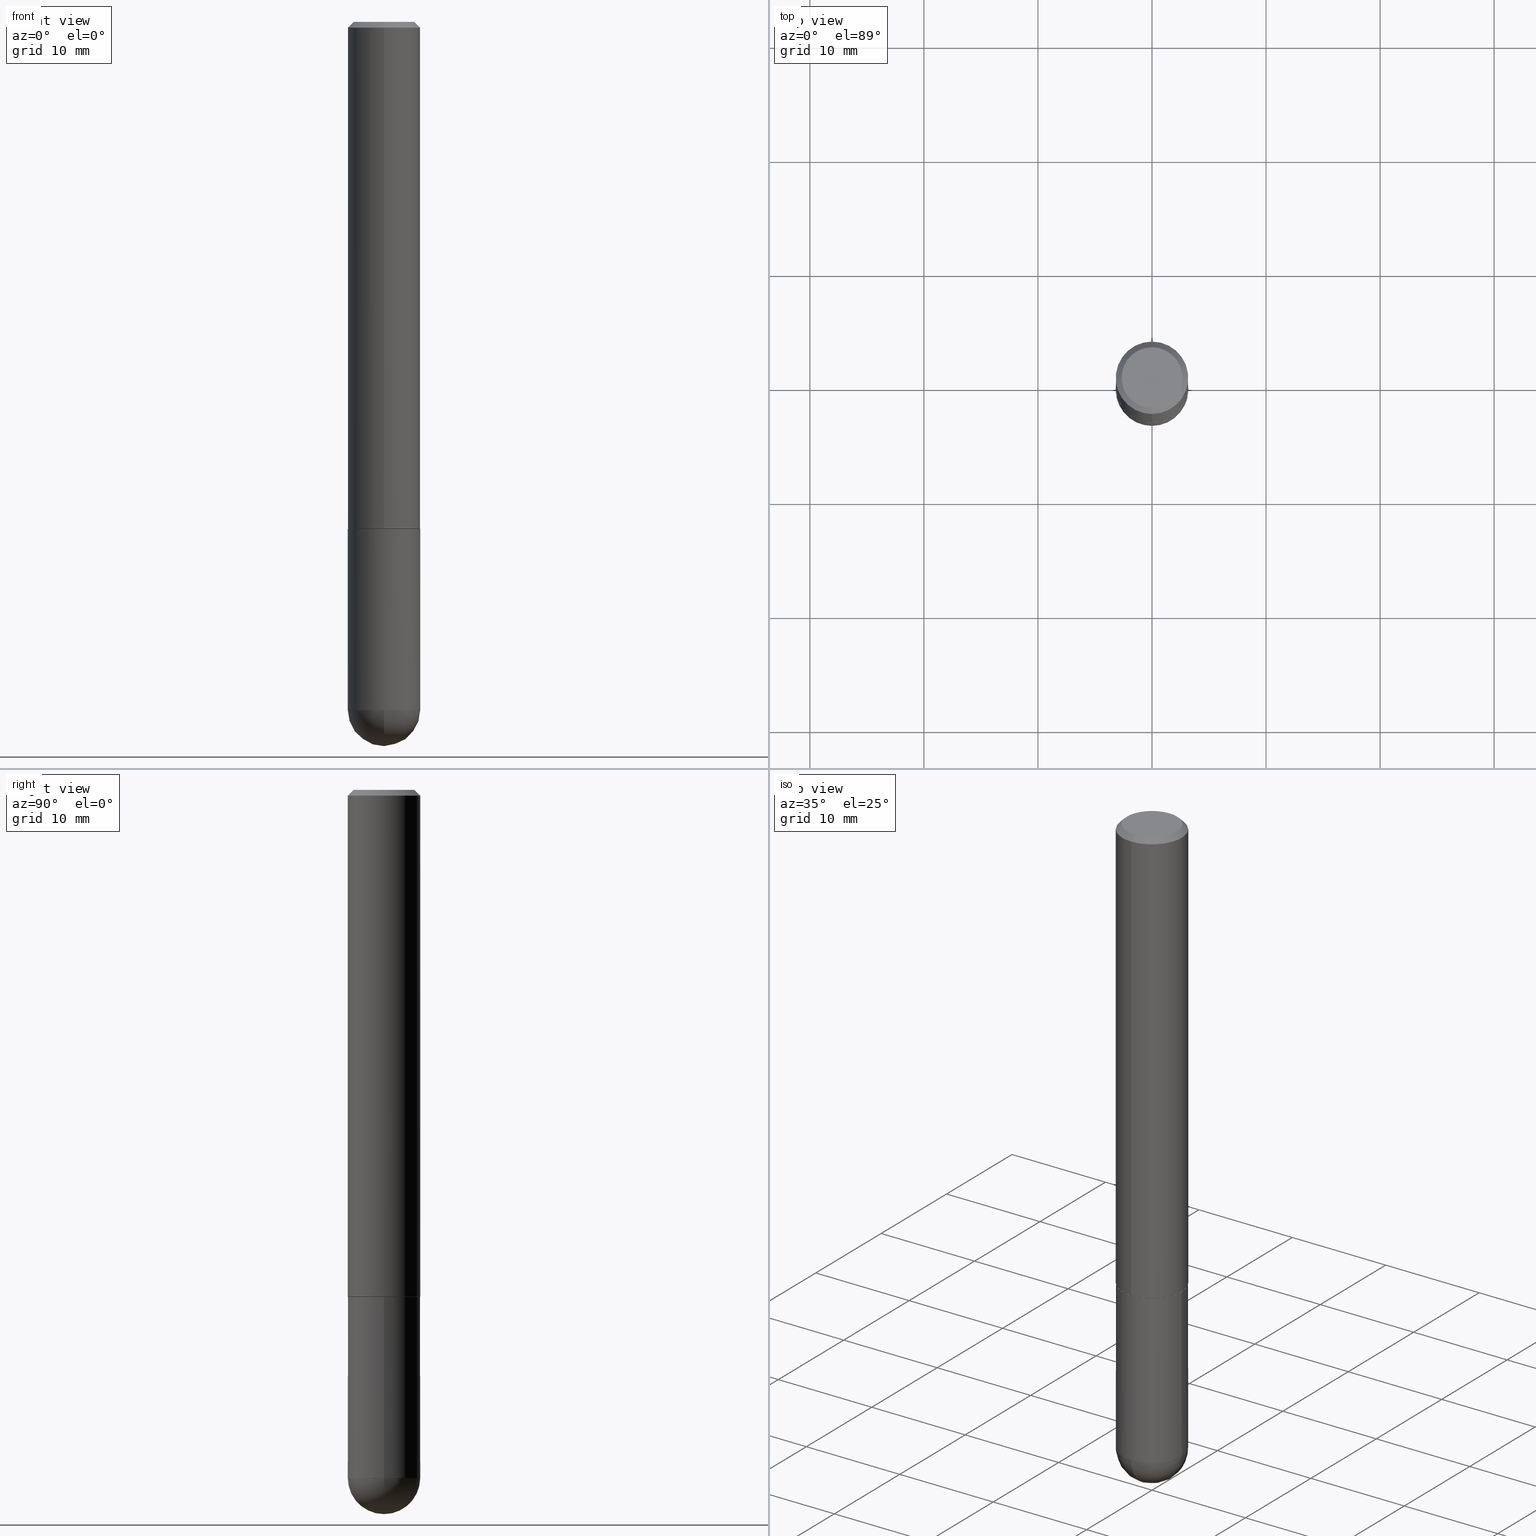
[diagram: canonical four-view strip — front | top / right | iso, engineering-drawing reading convention]
A machine part, canonical four-view strip (front | top / right | iso — engineering-drawing reading convention). The complete STEP part file that produces these views, byte-faithful:
ISO-10303-21;
HEADER;
FILE_DESCRIPTION (( 'STEP AP203' ),
    '1' );
FILE_NAME ('30132.STEP',
    '2024-02-21T16:35:25',
    ( '' ),
    ( '' ),
    'SwSTEP 2.0',
    'SolidWorks 2023',
    '' );
FILE_SCHEMA (( 'CONFIG_CONTROL_DESIGN' ));
ENDSEC;

DATA;
#1 = ADVANCED_FACE ( 'NONE', ( #272 ), #264, .F. ) ;
#2 = DIRECTION ( 'NONE',  ( -6.982962677686266711E-15, -1.000000000000000000, 3.491141472859906642E-15 ) ) ;
#3 = DIRECTION ( 'NONE',  ( -6.982962677686265922E-15, -1.000000000000000000, 4.406206441393973340E-15 ) ) ;
#4 = LINE ( 'NONE', #293, #371 ) ;
#5 = APPROVAL_DATE_TIME ( #65, #129 ) ;
#6 = CIRCLE ( 'NONE', #401, 0.1239999999999999991 ) ;
#7 = EDGE_CURVE ( 'NONE', #91, #100, #302, .T. ) ;
#8 = CALENDAR_DATE ( 2024, 21, 2 ) ;
#9 = CARTESIAN_POINT ( 'NONE',  ( 4.277540027199021844E-29, -6.106006436031975850E-15, -1.749000000000000110 ) ) ;
#10 = LENGTH_MEASURE_WITH_UNIT ( LENGTH_MEASURE( 0.02539999999999999897 ), #208 );
#11 = DIRECTION ( 'NONE',  ( 2.438088387897960049E-29, -3.491481338843145188E-15, -1.000000000000000000 ) ) ;
#12 = ORIENTED_EDGE ( 'NONE', *, *, #108, .F. ) ;
#13 = CARTESIAN_POINT ( 'NONE',  ( 4.891412266665553962E-31, -6.982282945719821124E-17, -0.02000000000000002470 ) ) ;
#14 = CIRCLE ( 'NONE', #345, 0.1250000000000000000 ) ;
#15 = APPROVAL_PERSON_ORGANIZATION ( #34, #224, #96 ) ;
#16 = LINE ( 'NONE', #238, #147 ) ;
#17 = ORIENTED_EDGE ( 'NONE', *, *, #188, .T. ) ;
#18 = EDGE_CURVE ( 'NONE', #252, #134, #112, .T. ) ;
#19 = DIRECTION ( 'NONE',  ( -6.982962677686266711E-15, -1.000000000000000000, 3.491141472859906642E-15 ) ) ;
#20 = ORIENTED_EDGE ( 'NONE', *, *, #206, .T. ) ;
#21 = CARTESIAN_POINT ( 'NONE',  ( 0.000000000000000000, 0.000000000000000000, 0.000000000000000000 ) ) ;
#22 = PERSON_AND_ORGANIZATION ( #317, #389 ) ;
#23 = ORIENTED_EDGE ( 'NONE', *, *, #376, .T. ) ;
#24 = PERSON_AND_ORGANIZATION_ROLE ( 'design_supplier' ) ;
#25 = DESIGN_CONTEXT ( 'detailed design', #186, 'design' ) ;
#26 = VERTEX_POINT ( 'NONE', #42 ) ;
#27 = EDGE_CURVE ( 'NONE', #355, #26, #373, .T. ) ;
#28 = CONICAL_SURFACE ( 'NONE', #300, 0.1250000000000000000, 0.7853981633974473908 ) ;
#29 = CC_DESIGN_PERSON_AND_ORGANIZATION_ASSIGNMENT ( #209, #181, ( #153 ) ) ;
#30 = DIRECTION ( 'NONE',  ( -2.445706133332774021E-29, 3.491141472859906642E-15, 1.000000000000000000 ) ) ;
#31 = DIRECTION ( 'NONE',  ( -2.445468806185136597E-29, 3.491481338843145583E-15, 1.000000000000000000 ) ) ;
#32 = DIRECTION ( 'NONE',  ( -2.445706133332773740E-29, 3.491141472859906642E-15, 1.000000000000000000 ) ) ;
#33 = CARTESIAN_POINT ( 'NONE',  ( 5.807988414689700538E-29, -8.292268179752471696E-15, -2.375000000000000000 ) ) ;
#34 = PERSON_AND_ORGANIZATION ( #317, #389 ) ;
#35 = CARTESIAN_POINT ( 'NONE',  ( -0.1250000000000000000, -6.313001841663864134E-15, -2.375000000000000000 ) ) ;
#36 = AXIS2_PLACEMENT_3D ( 'NONE', #205, #38, #174 ) ;
#37 = EDGE_CURVE ( 'NONE', #88, #26, #14, .T. ) ;
#38 = DIRECTION ( 'NONE',  ( 1.000000000000000000, -6.982962677686265922E-15, 4.883557194083112340E-29 ) ) ;
#39 = EDGE_CURVE ( 'NONE', #26, #88, #246, .T. ) ;
#40 = ORIENTED_EDGE ( 'NONE', *, *, #287, .T. ) ;
#41 = AXIS2_PLACEMENT_3D ( 'NONE', #324, #330, #19 ) ;
#42 = CARTESIAN_POINT ( 'NONE',  ( -8.575622497214408537E-16, -0.1250000000000000555, -0.01999999999999959102 ) ) ;
#43 = CC_DESIGN_APPROVAL ( #224, ( #260 ) ) ;
#44 = COORDINATED_UNIVERSAL_TIME_OFFSET ( 5, 0, .BEHIND. ) ;
#45 = DIRECTION ( 'NONE',  ( 1.000000000000000000, 0.000000000000000000, 0.000000000000000000 ) ) ;
#46 = CARTESIAN_POINT ( 'NONE',  ( 8.030407079339207309E-16, 0.1049999999999999684, -3.281889281676264539E-16 ) ) ;
#47 = ORIENTED_EDGE ( 'NONE', *, *, #27, .T. ) ;
#48 = FACE_OUTER_BOUND ( 'NONE', #106, .T. ) ;
#49 = DIRECTION ( 'NONE',  ( -4.851104656540959542E-15, -0.7071067811865493491, -0.7071067811865457964 ) ) ;
#50 = SHAPE_DEFINITION_REPRESENTATION ( #377, #326 ) ;
#51 = ORIENTED_EDGE ( 'NONE', *, *, #399, .F. ) ;
#52 = DIRECTION ( 'NONE',  ( -2.445706133332774021E-29, 3.491141472859906642E-15, 1.000000000000000000 ) ) ;
#53 = EDGE_LOOP ( 'NONE', ( #267, #263 ) ) ;
#54 = PERSON_AND_ORGANIZATION_ROLE ( 'creator' ) ;
#55 = AXIS2_PLACEMENT_3D ( 'NONE', #322, #256, #95 ) ;
#56 = ORIENTED_EDGE ( 'NONE', *, *, #108, .T. ) ;
#57 = SECURITY_CLASSIFICATION_LEVEL ( 'unclassified' ) ;
#58 = AXIS2_PLACEMENT_3D ( 'NONE', #84, #299, #400 ) ;
#59 = CC_DESIGN_SECURITY_CLASSIFICATION ( #153, ( #260 ) ) ;
#60 = ORIENTED_EDGE ( 'NONE', *, *, #37, .F. ) ;
#61 = AXIS2_PLACEMENT_3D ( 'NONE', #148, #334, #271 ) ;
#62 = DIRECTION ( 'NONE',  ( -2.445706133332773460E-29, 3.491141472859906642E-15, 1.000000000000000000 ) ) ;
#63 = CARTESIAN_POINT ( 'NONE',  ( -8.728703347107841277E-16, -0.1250000000000001110, 4.363926841074887247E-16 ) ) ;
#64 = DIRECTION ( 'NONE',  ( 6.982962677686265922E-15, 1.000000000000000000, -3.483106191921935554E-15 ) ) ;
#65 = DATE_AND_TIME ( #198, #391 ) ;
#66 = CARTESIAN_POINT ( 'NONE',  ( 0.1250000000000000000, -6.982962677686288010E-15, -1.750000000000000222 ) ) ;
#67 = FACE_OUTER_BOUND ( 'NONE', #184, .T. ) ;
#68 = AXIS2_PLACEMENT_3D ( 'NONE', #179, #397, #142 ) ;
#69 = CARTESIAN_POINT ( 'NONE',  ( -8.881784197000694204E-16, -0.1250000000000086320, -2.374999999999999556 ) ) ;
#70 = AXIS2_PLACEMENT_3D ( 'NONE', #336, #104, #216 ) ;
#71 = VERTEX_POINT ( 'NONE', #398 ) ;
#72 = MANIFOLD_SOLID_BREP ( 'Body-Move/Copy2[1]', #168 ) ;
#73 = PERSON_AND_ORGANIZATION ( #317, #389 ) ;
#74 = VERTEX_POINT ( 'NONE', #234 ) ;
#75 = CIRCLE ( 'NONE', #152, 0.1250000000000002498 ) ;
#76 = PLANE ( 'NONE',  #282 ) ;
#77 = ORIENTED_EDGE ( 'NONE', *, *, #351, .F. ) ;
#78 = DIRECTION ( 'NONE',  ( -2.445468806185136597E-29, 3.491481338843145583E-15, 1.000000000000000000 ) ) ;
#79 = CIRCLE ( 'NONE', #311, 0.1250000000000001943 ) ;
#80 = CALENDAR_DATE ( 2024, 21, 2 ) ;
#81 = DIRECTION ( 'NONE',  ( -1.000000000000000000, 7.105427357601001070E-15, -4.926315508542082329E-29 ) ) ;
#82 = EDGE_CURVE ( 'NONE', #74, #252, #175, .T. ) ;
#83 = APPROVAL_STATUS ( 'not_yet_approved' ) ;
#84 = CARTESIAN_POINT ( 'NONE',  ( 5.807988414689700538E-29, -8.292268179752471696E-15, -2.375000000000000000 ) ) ;
#85 = FACE_OUTER_BOUND ( 'NONE', #245, .T. ) ;
#86 = VERTEX_POINT ( 'NONE', #270 ) ;
#87 = EDGE_CURVE ( 'NONE', #91, #252, #276, .T. ) ;
#88 = VERTEX_POINT ( 'NONE', #117 ) ;
#89 = AXIS2_PLACEMENT_3D ( 'NONE', #223, #195, #312 ) ;
#90 = LINE ( 'NONE', #161, #133 ) ;
#91 = VERTEX_POINT ( 'NONE', #343 ) ;
#92 = ADVANCED_FACE ( 'NONE', ( #85 ), #352, .T. ) ;
#93 = CYLINDRICAL_SURFACE ( 'NONE', #89, 0.1250000000000000000 ) ;
#94 = FACE_OUTER_BOUND ( 'NONE', #378, .T. ) ;
#95 = DIRECTION ( 'NONE',  ( -6.982962677686265133E-15, -1.000000000000000000, 4.370956789862812472E-15 ) ) ;
#96 = APPROVAL_ROLE ( '' ) ;
#97 = CIRCLE ( 'NONE', #241, 0.1239999999999999991 ) ;
#98 = AXIS2_PLACEMENT_3D ( 'NONE', #295, #357, #359 ) ;
#99 = AXIS2_PLACEMENT_3D ( 'NONE', #33, #191, #392 ) ;
#100 = VERTEX_POINT ( 'NONE', #66 ) ;
#101 = FACE_OUTER_BOUND ( 'NONE', #200, .T. ) ;
#102 = CC_DESIGN_PERSON_AND_ORGANIZATION_ASSIGNMENT ( #340, #24, ( #260 ) ) ;
#103 = ORIENTED_EDGE ( 'NONE', *, *, #266, .F. ) ;
#104 = DIRECTION ( 'NONE',  ( -2.445468806185136597E-29, 3.491481338843145583E-15, 1.000000000000000000 ) ) ;
#105 = CARTESIAN_POINT ( 'NONE',  ( 5.807988414689700538E-29, -8.292268179752471696E-15, -2.375000000000000000 ) ) ;
#106 = EDGE_LOOP ( 'NONE', ( #350, #115, #20, #342, #103 ) ) ;
#107 = DIRECTION ( 'NONE',  ( 1.000000000000000000, -6.982962677686270655E-15, 0.000000000000000000 ) ) ;
#108 = EDGE_CURVE ( 'NONE', #285, #355, #408, .T. ) ;
#109 = SPHERICAL_SURFACE ( 'NONE', #68, 0.1250000000000001943 ) ;
#110 = CIRCLE ( 'NONE', #381, 0.1250000000000000000 ) ;
#111 = CARTESIAN_POINT ( 'NONE',  ( 0.1250000000000000000, -8.728703347107833388E-16, 6.095220969744919741E-30 ) ) ;
#112 = CIRCLE ( 'NONE', #61, 0.1250000000000000000 ) ;
#113 = FACE_OUTER_BOUND ( 'NONE', #236, .T. ) ;
#114 = UNCERTAINTY_MEASURE_WITH_UNIT (LENGTH_MEASURE( 1.000000000000000082E-05 ), #136, 'distance_accuracy_value', 'NONE');
#115 = ORIENTED_EDGE ( 'NONE', *, *, #354, .T. ) ;
#116 = ADVANCED_FACE ( 'NONE', ( #166 ), #255, .T. ) ;
#117 = CARTESIAN_POINT ( 'NONE',  ( 8.728703347107837333E-16, 0.1249999999999999306, -0.02000000000000046185 ) ) ;
#118 = VERTEX_POINT ( 'NONE', #199 ) ;
#119 = VECTOR ( 'NONE', #356, 39.37007874015748143 ) ;
#120 = ORIENTED_EDGE ( 'NONE', *, *, #281, .F. ) ;
#121 = LINE ( 'NONE', #250, #247 ) ;
#122 = FACE_OUTER_BOUND ( 'NONE', #171, .T. ) ;
#123 = ORIENTED_EDGE ( 'NONE', *, *, #155, .F. ) ;
#124 = ORIENTED_EDGE ( 'NONE', *, *, #314, .T. ) ;
#125 = PLANE ( 'NONE',  #227 ) ;
#126 = CARTESIAN_POINT ( 'NONE',  ( 0.000000000000000000, 0.000000000000000000, 0.000000000000000000 ) ) ;
#127 = EDGE_CURVE ( 'NONE', #144, #71, #280, .T. ) ;
#128 = DIRECTION ( 'NONE',  ( 5.024295867788490741E-15, 0.7071067811866103003, 0.7071067811864847341 ) ) ;
#129 = APPROVAL ( #318, 'UNSPECIFIED' ) ;
#130 = CARTESIAN_POINT ( 'NONE',  ( -7.889572697437258181E-16, -0.1049999999999999684, 4.049507811329536610E-16 ) ) ;
#131 = DATE_AND_TIME ( #8, #229 ) ;
#132 = APPROVAL_PERSON_ORGANIZATION ( #22, #341, #185 ) ;
#133 = VECTOR ( 'NONE', #32, 39.37007874015748143 ) ;
#134 = VERTEX_POINT ( 'NONE', #35 ) ;
#135 = ORIENTED_EDGE ( 'NONE', *, *, #127, .F. ) ;
#136 =( CONVERSION_BASED_UNIT ( 'INCH', #10 ) LENGTH_UNIT ( ) NAMED_UNIT ( #201 ) );
#137 = EDGE_CURVE ( 'NONE', #71, #144, #75, .T. ) ;
#138 = CARTESIAN_POINT ( 'NONE',  ( 7.332110811570578271E-16, 0.1049999999999999684, -3.473793914089582803E-16 ) ) ;
#139 = CARTESIAN_POINT ( 'NONE',  ( 8.728703347108403340E-16, 0.1249999999999915623, -2.375000000000000888 ) ) ;
#140 = LOCAL_TIME ( 11, 35, 25.00000000000000000, #262 ) ;
#141 = MECHANICAL_CONTEXT ( 'NONE', #169, 'mechanical' ) ;
#142 = DIRECTION ( 'NONE',  ( 6.982962677686265922E-15, 1.000000000000000000, -4.370956789862814839E-15 ) ) ;
#143 = DIRECTION ( 'NONE',  ( -6.982962677686265922E-15, -1.000000000000000000, 4.406206441393973340E-15 ) ) ;
#144 = VERTEX_POINT ( 'NONE', #225 ) ;
#145 = PERSON_AND_ORGANIZATION_ROLE ( 'design_owner' ) ;
#146 = CARTESIAN_POINT ( 'NONE',  ( -9.386846730164464560E-46, 1.339932442104139966E-31, 3.838092648266359737E-17 ) ) ;
#147 = VECTOR ( 'NONE', #275, 39.37007874015748143 ) ;
#148 = CARTESIAN_POINT ( 'NONE',  ( 5.807988414689700538E-29, -8.292268179752471696E-15, -2.375000000000000000 ) ) ;
#149 = AXIS2_PLACEMENT_3D ( 'NONE', #170, #196, #290 ) ;
#150 = EDGE_LOOP ( 'NONE', ( #56, #219 ) ) ;
#151 =( GEOMETRIC_REPRESENTATION_CONTEXT ( 3 ) GLOBAL_UNCERTAINTY_ASSIGNED_CONTEXT ( ( #114 ) ) GLOBAL_UNIT_ASSIGNED_CONTEXT ( ( #136, #265, #362 ) ) REPRESENTATION_CONTEXT ( 'NONE', 'WORKASPACE' ) );
#152 = AXIS2_PLACEMENT_3D ( 'NONE', #9, #395, #193 ) ;
#153 = SECURITY_CLASSIFICATION ( '', '', #57 ) ;
#154 = VERTEX_POINT ( 'NONE', #69 ) ;
#155 = EDGE_CURVE ( 'NONE', #355, #285, #183, .T. ) ;
#156 = CARTESIAN_POINT ( 'NONE',  ( 4.279985733332354606E-29, -6.109497577504836920E-15, -1.750000000000000222 ) ) ;
#157 = ORIENTED_EDGE ( 'NONE', *, *, #37, .T. ) ;
#158 = ORIENTED_EDGE ( 'NONE', *, *, #331, .F. ) ;
#159 = CYLINDRICAL_SURFACE ( 'NONE', #190, 0.1250000000000001110 ) ;
#160 = VECTOR ( 'NONE', #49, 39.37007874015748143 ) ;
#161 = CARTESIAN_POINT ( 'NONE',  ( 8.881784197001260212E-16, 0.1250000000000001110, -4.363926841074887247E-16 ) ) ;
#162 = PERSON_AND_ORGANIZATION_ROLE ( 'creator' ) ;
#163 = CC_DESIGN_PERSON_AND_ORGANIZATION_ASSIGNMENT ( #289, #162, ( #248 ) ) ;
#164 = CARTESIAN_POINT ( 'NONE',  ( 4.891412266665553962E-31, -6.982282945719821124E-17, -0.02000000000000002470 ) ) ;
#165 = APPLICATION_PROTOCOL_DEFINITION ( 'international standard', 'config_control_design', 1994, #186 ) ;
#166 = FACE_OUTER_BOUND ( 'NONE', #244, .T. ) ;
#167 = DATE_AND_TIME ( #393, #140 ) ;
#168 = CLOSED_SHELL ( 'NONE', ( #337, #261, #92, #278, #309 ) ) ;
#169 = APPLICATION_CONTEXT ( 'configuration controlled 3d designs of mechanical parts and assemblies' ) ;
#170 = CARTESIAN_POINT ( 'NONE',  ( 5.476868636775814291E-29, -8.766450547892521992E-15, -2.375000000000000000 ) ) ;
#171 = EDGE_LOOP ( 'NONE', ( #338, #382, #17, #396 ) ) ;
#172 = CARTESIAN_POINT ( 'NONE',  ( 4.891412266665553962E-31, -6.982282945719821124E-17, -0.02000000000000002470 ) ) ;
#173 = APPROVAL_DATE_TIME ( #167, #224 ) ;
#174 = DIRECTION ( 'NONE',  ( 6.982962677686265133E-15, 1.000000000000000000, 0.000000000000000000 ) ) ;
#175 = CIRCLE ( 'NONE', #36, 0.1250000000000001943 ) ;
#176 = ORIENTED_EDGE ( 'NONE', *, *, #344, .F. ) ;
#177 = AXIS2_PLACEMENT_3D ( 'NONE', #291, #222, #387 ) ;
#178 = CALENDAR_DATE ( 2024, 21, 2 ) ;
#179 = CARTESIAN_POINT ( 'NONE',  ( 5.476868636775814291E-29, -8.766450547892521992E-15, -2.375000000000000000 ) ) ;
#180 = CC_DESIGN_DATE_AND_TIME_ASSIGNMENT ( #131, #385, ( #248 ) ) ;
#181 = PERSON_AND_ORGANIZATION_ROLE ( 'classification_officer' ) ;
#182 = DIRECTION ( 'NONE',  ( -2.445468806185136597E-29, 3.491481338843145583E-15, 1.000000000000000000 ) ) ;
#183 = CIRCLE ( 'NONE', #306, 0.1049999999999999684 ) ;
#184 = EDGE_LOOP ( 'NONE', ( #123, #47, #230, #120 ) ) ;
#185 = APPROVAL_ROLE ( '' ) ;
#186 = APPLICATION_CONTEXT ( 'configuration controlled 3d designs of mechanical parts and assemblies' ) ;
#187 = ORIENTED_EDGE ( 'NONE', *, *, #354, .F. ) ;
#188 = EDGE_CURVE ( 'NONE', #118, #144, #204, .T. ) ;
#189 = CC_DESIGN_APPROVAL ( #341, ( #153 ) ) ;
#190 = AXIS2_PLACEMENT_3D ( 'NONE', #126, #228, #2 ) ;
#191 = DIRECTION ( 'NONE',  ( -2.445468806185136597E-29, 3.491481338843145583E-15, 1.000000000000000000 ) ) ;
#192 = ADVANCED_FACE ( 'NONE', ( #363 ), #243, .T. ) ;
#193 = DIRECTION ( 'NONE',  ( -6.982962677686265133E-15, -1.000000000000000000, 4.370956789862812472E-15 ) ) ;
#194 = AXIS2_PLACEMENT_3D ( 'NONE', #366, #210, #45 ) ;
#195 = DIRECTION ( 'NONE',  ( -2.445468806185136597E-29, 3.491481338843145583E-15, 1.000000000000000000 ) ) ;
#196 = DIRECTION ( 'NONE',  ( -1.000000000000000000, 6.982962677686265922E-15, -4.883557194083112901E-29 ) ) ;
#197 = ORIENTED_EDGE ( 'NONE', *, *, #18, .F. ) ;
#198 = CALENDAR_DATE ( 2024, 21, 2 ) ;
#199 = CARTESIAN_POINT ( 'NONE',  ( -8.658873720330540358E-16, -0.1240000000000061053, -1.749999999999999556 ) ) ;
#200 = EDGE_LOOP ( 'NONE', ( #390, #410, #412, #51 ) ) ;
#201 = DIMENSIONAL_EXPONENTS ( 1.000000000000000000, 0.000000000000000000, 0.000000000000000000, 0.000000000000000000, 0.000000000000000000, 0.000000000000000000, 0.000000000000000000 ) ;
#202 = AXIS2_PLACEMENT_3D ( 'NONE', #292, #320, #257 ) ;
#203 = CARTESIAN_POINT ( 'NONE',  ( -8.575622497214408537E-16, -0.1250000000000000555, -0.01999999999999959102 ) ) ;
#204 = LINE ( 'NONE', #374, #288 ) ;
#205 = CARTESIAN_POINT ( 'NONE',  ( 5.476868636775814291E-29, -8.766450547892521992E-15, -2.375000000000000000 ) ) ;
#206 = EDGE_CURVE ( 'NONE', #154, #91, #339, .T. ) ;
#207 = CARTESIAN_POINT ( 'NONE',  ( 8.846257060213682142E-16, 0.1239999999999938790, -1.750000000000000666 ) ) ;
#208 =( LENGTH_UNIT ( ) NAMED_UNIT ( * ) SI_UNIT ( $, .METRE. ) );
#209 = PERSON_AND_ORGANIZATION ( #317, #389 ) ;
#210 = DIRECTION ( 'NONE',  ( 0.000000000000000000, 0.000000000000000000, 1.000000000000000000 ) ) ;
#211 = CC_DESIGN_APPROVAL ( #129, ( #248 ) ) ;
#212 = CC_DESIGN_DATE_AND_TIME_ASSIGNMENT ( #402, #332, ( #153 ) ) ;
#213 = DIRECTION ( 'NONE',  ( -6.982962677686267499E-15, -1.000000000000000000, 3.491141472859906642E-15 ) ) ;
#214 = DIRECTION ( 'NONE',  ( -7.105427357601000281E-15, -1.000000000000000000, 0.000000000000000000 ) ) ;
#215 = DATE_AND_TIME ( #178, #368 ) ;
#216 = DIRECTION ( 'NONE',  ( 1.000000000000000000, -6.982962677686262766E-15, 0.000000000000000000 ) ) ;
#217 = PERSON_AND_ORGANIZATION ( #317, #389 ) ;
#218 = MANIFOLD_SOLID_BREP ( 'Body-Move/Copy2[2]', #301 ) ;
#219 = ORIENTED_EDGE ( 'NONE', *, *, #155, .T. ) ;
#220 = ORIENTED_EDGE ( 'NONE', *, *, #87, .F. ) ;
#221 = FACE_OUTER_BOUND ( 'NONE', #277, .T. ) ;
#222 = DIRECTION ( 'NONE',  ( -2.445706133332774021E-29, 3.491141472859906642E-15, 1.000000000000000000 ) ) ;
#223 = CARTESIAN_POINT ( 'NONE',  ( 0.000000000000000000, 0.000000000000000000, 0.000000000000000000 ) ) ;
#224 = APPROVAL ( #388, 'UNSPECIFIED' ) ;
#225 = CARTESIAN_POINT ( 'NONE',  ( -8.728703347107421208E-16, -0.1250000000000063560, -1.748999999999999666 ) ) ;
#226 = ORIENTED_EDGE ( 'NONE', *, *, #269, .F. ) ;
#227 = AXIS2_PLACEMENT_3D ( 'NONE', #346, #62, #254 ) ;
#228 = DIRECTION ( 'NONE',  ( -2.445706133332774021E-29, 3.491141472859906642E-15, 1.000000000000000000 ) ) ;
#229 = LOCAL_TIME ( 11, 35, 25.00000000000000000, #258 ) ;
#230 = ORIENTED_EDGE ( 'NONE', *, *, #39, .T. ) ;
#231 = LINE ( 'NONE', #63, #119 ) ;
#232 = ORIENTED_EDGE ( 'NONE', *, *, #82, .T. ) ;
#233 = APPLICATION_PROTOCOL_DEFINITION ( 'international standard', 'config_control_design', 1994, #169 ) ;
#234 = CARTESIAN_POINT ( 'NONE',  ( 5.787897026856327965E-29, -9.195231672753244292E-15, -2.500000000000000444 ) ) ;
#235 = DIRECTION ( 'NONE',  ( -2.445706133332774021E-29, 3.491141472859906642E-15, 1.000000000000000000 ) ) ;
#236 = EDGE_LOOP ( 'NONE', ( #308, #40, #187, #197 ) ) ;
#237 = PRODUCT_RELATED_PRODUCT_CATEGORY ( 'detail', '', ( #407 ) ) ;
#238 = CARTESIAN_POINT ( 'NONE',  ( 8.728703347107837333E-16, 0.1249999999999999306, -0.02000000000000046185 ) ) ;
#239 = CIRCLE ( 'NONE', #99, 0.1250000000000000000 ) ;
#240 = FACE_OUTER_BOUND ( 'NONE', #53, .T. ) ;
#241 = AXIS2_PLACEMENT_3D ( 'NONE', #404, #235, #143 ) ;
#242 = DIRECTION ( 'NONE',  ( -2.445468806185136877E-29, 3.491481338843145188E-15, 1.000000000000000000 ) ) ;
#243 = CYLINDRICAL_SURFACE ( 'NONE', #41, 0.1250000000000001110 ) ;
#244 = EDGE_LOOP ( 'NONE', ( #347, #12, #380, #157 ) ) ;
#245 = EDGE_LOOP ( 'NONE', ( #321, #232, #220, #249 ) ) ;
#246 = CIRCLE ( 'NONE', #353, 0.1250000000000000000 ) ;
#247 = VECTOR ( 'NONE', #379, 39.37007874015748143 ) ;
#248 = PRODUCT_DEFINITION ( 'UNKNOWN', '', #260, #25 ) ;
#249 = ORIENTED_EDGE ( 'NONE', *, *, #206, .F. ) ;
#250 = CARTESIAN_POINT ( 'NONE',  ( -0.1250000000000000000, 8.881784197001252323E-16, -6.148668862818632227E-30 ) ) ;
#251 = DIRECTION ( 'NONE',  ( -6.982962677686265922E-15, -1.000000000000000000, 4.406206441393973340E-15 ) ) ;
#252 = VERTEX_POINT ( 'NONE', #139 ) ;
#253 = EDGE_LOOP ( 'NONE', ( #176, #394, #283, #60 ) ) ;
#254 = DIRECTION ( 'NONE',  ( -6.982962677686265922E-15, -1.000000000000000000, 3.491141472859906642E-15 ) ) ;
#255 = CONICAL_SURFACE ( 'NONE', #98, 0.1250000000000000000, 0.7853981633974473908 ) ;
#256 = DIRECTION ( 'NONE',  ( -2.445706133332774021E-29, 3.491141472859906642E-15, 1.000000000000000000 ) ) ;
#257 = DIRECTION ( 'NONE',  ( -6.982962677686267499E-15, -1.000000000000000000, 3.491141472859906642E-15 ) ) ;
#258 = COORDINATED_UNIVERSAL_TIME_OFFSET ( 5, 0, .BEHIND. ) ;
#259 = ORIENTED_EDGE ( 'NONE', *, *, #87, .T. ) ;
#260 = PRODUCT_DEFINITION_FORMATION_WITH_SPECIFIED_SOURCE ( 'ANY', '', #407, .NOT_KNOWN. ) ;
#261 = ADVANCED_FACE ( 'NONE', ( #113 ), #109, .T. ) ;
#262 = COORDINATED_UNIVERSAL_TIME_OFFSET ( 5, 0, .BEHIND. ) ;
#263 = ORIENTED_EDGE ( 'NONE', *, *, #266, .T. ) ;
#264 = PLANE ( 'NONE',  #316 ) ;
#265 =( NAMED_UNIT ( * ) PLANE_ANGLE_UNIT ( ) SI_UNIT ( $, .RADIAN. ) );
#266 = EDGE_CURVE ( 'NONE', #86, #100, #274, .T. ) ;
#267 = ORIENTED_EDGE ( 'NONE', *, *, #331, .T. ) ;
#268 = DIRECTION ( 'NONE',  ( -6.982962677686265922E-15, -1.000000000000000000, 3.483106191921935554E-15 ) ) ;
#269 = EDGE_CURVE ( 'NONE', #118, #279, #97, .T. ) ;
#270 = CARTESIAN_POINT ( 'NONE',  ( -0.1250000000000000000, -6.313001841663863345E-15, -1.750000000000000222 ) ) ;
#271 = DIRECTION ( 'NONE',  ( 1.000000000000000000, -6.982962677686270655E-15, 0.000000000000000000 ) ) ;
#272 = FACE_OUTER_BOUND ( 'NONE', #150, .T. ) ;
#273 = DIRECTION ( 'NONE',  ( 2.445706133332773460E-29, -3.491141472859906642E-15, -1.000000000000000000 ) ) ;
#274 = CIRCLE ( 'NONE', #70, 0.1250000000000000000 ) ;
#275 = DIRECTION ( 'NONE',  ( 4.937700262164543309E-15, 0.7071067811865444641, -0.7071067811865506814 ) ) ;
#276 = CIRCLE ( 'NONE', #403, 0.1250000000000000000 ) ;
#277 = EDGE_LOOP ( 'NONE', ( #226, #77 ) ) ;
#278 = ADVANCED_FACE ( 'NONE', ( #240 ), #76, .F. ) ;
#279 = VERTEX_POINT ( 'NONE', #207 ) ;
#280 = CIRCLE ( 'NONE', #55, 0.1250000000000002498 ) ;
#281 = EDGE_CURVE ( 'NONE', #285, #88, #16, .T. ) ;
#282 = AXIS2_PLACEMENT_3D ( 'NONE', #372, #11, #333 ) ;
#283 = ORIENTED_EDGE ( 'NONE', *, *, #399, .T. ) ;
#284 = DIRECTION ( 'NONE',  ( -2.445706133332774021E-29, 3.491141472859906642E-15, 1.000000000000000000 ) ) ;
#285 = VERTEX_POINT ( 'NONE', #46 ) ;
#286 = DIRECTION ( 'NONE',  ( 1.000000000000000000, -6.982962677686262766E-15, 0.000000000000000000 ) ) ;
#287 = EDGE_CURVE ( 'NONE', #74, #154, #79, .T. ) ;
#288 = VECTOR ( 'NONE', #367, 39.37007874015748143 ) ;
#289 = PERSON_AND_ORGANIZATION ( #317, #389 ) ;
#290 = DIRECTION ( 'NONE',  ( 6.982962677686265922E-15, 1.000000000000000000, -4.370956789862814839E-15 ) ) ;
#291 = CARTESIAN_POINT ( 'NONE',  ( 4.279985733332354606E-29, -6.109497577504836920E-15, -1.750000000000000222 ) ) ;
#292 = CARTESIAN_POINT ( 'NONE',  ( -9.386846730164464560E-46, 1.339932442104139966E-31, 3.838092648266359737E-17 ) ) ;
#293 = CARTESIAN_POINT ( 'NONE',  ( 8.810729923425669213E-16, 0.1239999999999938790, -1.750000000000000666 ) ) ;
#294 = COORDINATED_UNIVERSAL_TIME_OFFSET ( 5, 0, .BEHIND. ) ;
#295 = CARTESIAN_POINT ( 'NONE',  ( 4.891412266665553962E-31, -6.982282945719821124E-17, -0.02000000000000002470 ) ) ;
#296 = CONICAL_SURFACE ( 'NONE', #327, 0.1239999999999999991, 0.7853981633975336552 ) ;
#297 = DIRECTION ( 'NONE',  ( -2.445706133332774021E-29, 3.491141472859906642E-15, 1.000000000000000000 ) ) ;
#298 = CC_DESIGN_PERSON_AND_ORGANIZATION_ASSIGNMENT ( #369, #145, ( #407 ) ) ;
#299 = DIRECTION ( 'NONE',  ( -2.445468806185136597E-29, 3.491481338843145583E-15, 1.000000000000000000 ) ) ;
#300 = AXIS2_PLACEMENT_3D ( 'NONE', #164, #315, #64 ) ;
#301 = CLOSED_SHELL ( 'NONE', ( #409, #384, #365, #116, #192, #360, #319, #1 ) ) ;
#302 = LINE ( 'NONE', #111, #370 ) ;
#303 = CARTESIAN_POINT ( 'NONE',  ( 5.476868636775814291E-29, -8.766450547892521992E-15, -2.375000000000000000 ) ) ;
#304 = CYLINDRICAL_SURFACE ( 'NONE', #406, 0.1250000000000000000 ) ;
#305 = ORIENTED_EDGE ( 'NONE', *, *, #269, .T. ) ;
#306 = AXIS2_PLACEMENT_3D ( 'NONE', #146, #52, #213 ) ;
#307 = ORIENTED_EDGE ( 'NONE', *, *, #7, .F. ) ;
#308 = ORIENTED_EDGE ( 'NONE', *, *, #82, .F. ) ;
#309 = ADVANCED_FACE ( 'NONE', ( #48 ), #304, .T. ) ;
#310 = LOCAL_TIME ( 11, 35, 25.00000000000000000, #328 ) ;
#311 = AXIS2_PLACEMENT_3D ( 'NONE', #303, #81, #214 ) ;
#312 = DIRECTION ( 'NONE',  ( 1.000000000000000000, -6.982962677686266711E-15, 4.876176775795935793E-29 ) ) ;
#313 = CARTESIAN_POINT ( 'NONE',  ( 4.279570410823989044E-29, -6.110092342975505460E-15, -1.750000000000000222 ) ) ;
#314 = EDGE_CURVE ( 'NONE', #134, #86, #121, .T. ) ;
#315 = DIRECTION ( 'NONE',  ( 2.445706133332774021E-29, -3.491141472859906642E-15, -1.000000000000000000 ) ) ;
#316 = AXIS2_PLACEMENT_3D ( 'NONE', #138, #273, #361 ) ;
#317 = PERSON ( 'UNSPECIFIED', 'UNSPECIFIED', 'UNSPECIFIED', ('UNSPECIFIED'), ('UNSPECIFIED'), ('UNSPECIFIED') ) ;
#318 = APPROVAL_STATUS ( 'not_yet_approved' ) ;
#319 = ADVANCED_FACE ( 'NONE', ( #221 ), #125, .F. ) ;
#320 = DIRECTION ( 'NONE',  ( -2.445706133332774021E-29, 3.491141472859906642E-15, 1.000000000000000000 ) ) ;
#321 = ORIENTED_EDGE ( 'NONE', *, *, #287, .F. ) ;
#322 = CARTESIAN_POINT ( 'NONE',  ( 4.277540027199021844E-29, -6.106006436031975850E-15, -1.749000000000000110 ) ) ;
#323 = APPROVAL_PERSON_ORGANIZATION ( #73, #129, #349 ) ;
#324 = CARTESIAN_POINT ( 'NONE',  ( 0.000000000000000000, 0.000000000000000000, 0.000000000000000000 ) ) ;
#325 = DIRECTION ( 'NONE',  ( -6.982962677686265922E-15, -1.000000000000000000, 3.483106191921935554E-15 ) ) ;
#326 = ADVANCED_BREP_SHAPE_REPRESENTATION ( '30132', ( #72, #218, #194 ), #151 ) ;
#327 = AXIS2_PLACEMENT_3D ( 'NONE', #156, #284, #251 ) ;
#328 = COORDINATED_UNIVERSAL_TIME_OFFSET ( 5, 0, .BEHIND. ) ;
#329 = CONICAL_SURFACE ( 'NONE', #177, 0.1239999999999999991, 0.7853981633975336552 ) ;
#330 = DIRECTION ( 'NONE',  ( -2.445706133332774021E-29, 3.491141472859906642E-15, 1.000000000000000000 ) ) ;
#331 = EDGE_CURVE ( 'NONE', #100, #86, #110, .T. ) ;
#332 = DATE_TIME_ROLE ( 'classification_date' ) ;
#333 = DIRECTION ( 'NONE',  ( -1.000000000000000000, 6.982962677686265922E-15, -4.876176775795935793E-29 ) ) ;
#334 = DIRECTION ( 'NONE',  ( -2.445468806185136597E-29, 3.491481338843145583E-15, 1.000000000000000000 ) ) ;
#335 = APPROVAL_DATE_TIME ( #215, #341 ) ;
#336 = CARTESIAN_POINT ( 'NONE',  ( 4.279570410823989044E-29, -6.110092342975505460E-15, -1.750000000000000222 ) ) ;
#337 = ADVANCED_FACE ( 'NONE', ( #383 ), #93, .T. ) ;
#338 = ORIENTED_EDGE ( 'NONE', *, *, #376, .F. ) ;
#339 = CIRCLE ( 'NONE', #58, 0.1250000000000000000 ) ;
#340 = PERSON_AND_ORGANIZATION ( #317, #389 ) ;
#341 = APPROVAL ( #83, 'UNSPECIFIED' ) ;
#342 = ORIENTED_EDGE ( 'NONE', *, *, #7, .T. ) ;
#343 = CARTESIAN_POINT ( 'NONE',  ( 0.1250000000000000000, -8.074050596074771916E-15, -2.375000000000000000 ) ) ;
#344 = EDGE_CURVE ( 'NONE', #71, #88, #90, .T. ) ;
#345 = AXIS2_PLACEMENT_3D ( 'NONE', #172, #297, #325 ) ;
#346 = CARTESIAN_POINT ( 'NONE',  ( 4.279985733332354606E-29, -6.109497577504836920E-15, -1.750000000000000222 ) ) ;
#347 = ORIENTED_EDGE ( 'NONE', *, *, #27, .F. ) ;
#348 = CARTESIAN_POINT ( 'NONE',  ( 4.279985733332354606E-29, -6.109497577504836920E-15, -1.750000000000000222 ) ) ;
#349 = APPROVAL_ROLE ( '' ) ;
#350 = ORIENTED_EDGE ( 'NONE', *, *, #314, .F. ) ;
#351 = EDGE_CURVE ( 'NONE', #279, #118, #6, .T. ) ;
#352 = SPHERICAL_SURFACE ( 'NONE', #149, 0.1250000000000001943 ) ;
#353 = AXIS2_PLACEMENT_3D ( 'NONE', #13, #364, #268 ) ;
#354 = EDGE_CURVE ( 'NONE', #134, #154, #239, .T. ) ;
#355 = VERTEX_POINT ( 'NONE', #130 ) ;
#356 = DIRECTION ( 'NONE',  ( -2.445706133332773740E-29, 3.491141472859906642E-15, 1.000000000000000000 ) ) ;
#357 = DIRECTION ( 'NONE',  ( 2.445706133332774021E-29, -3.491141472859906642E-15, -1.000000000000000000 ) ) ;
#358 = ORIENTED_EDGE ( 'NONE', *, *, #18, .T. ) ;
#359 = DIRECTION ( 'NONE',  ( 6.982962677686265922E-15, 1.000000000000000000, -3.483106191921935554E-15 ) ) ;
#360 = ADVANCED_FACE ( 'NONE', ( #122 ), #329, .T. ) ;
#361 = DIRECTION ( 'NONE',  ( 6.982962677686265922E-15, 1.000000000000000000, -3.491141472859906642E-15 ) ) ;
#362 =( NAMED_UNIT ( * ) SI_UNIT ( $, .STERADIAN. ) SOLID_ANGLE_UNIT ( ) );
#363 = FACE_OUTER_BOUND ( 'NONE', #253, .T. ) ;
#364 = DIRECTION ( 'NONE',  ( -2.445706133332774021E-29, 3.491141472859906642E-15, 1.000000000000000000 ) ) ;
#365 = ADVANCED_FACE ( 'NONE', ( #67 ), #28, .T. ) ;
#366 = CARTESIAN_POINT ( 'NONE',  ( 0.000000000000000000, 0.000000000000000000, 0.000000000000000000 ) ) ;
#367 = DIRECTION ( 'NONE',  ( -4.937700262164969294E-15, -0.7071067811866054154, 0.7071067811864896191 ) ) ;
#368 = LOCAL_TIME ( 11, 35, 25.00000000000000000, #44 ) ;
#369 = PERSON_AND_ORGANIZATION ( #317, #389 ) ;
#370 = VECTOR ( 'NONE', #242, 39.37007874015748143 ) ;
#371 = VECTOR ( 'NONE', #128, 39.37007874015748143 ) ;
#372 = CARTESIAN_POINT ( 'NONE',  ( 8.728703347108260359E-16, 0.1249999999999938799, -1.750000000000000666 ) ) ;
#373 = LINE ( 'NONE', #203, #160 ) ;
#374 = CARTESIAN_POINT ( 'NONE',  ( -8.658873720330540358E-16, -0.1240000000000061053, -1.749999999999999556 ) ) ;
#375 = ORIENTED_EDGE ( 'NONE', *, *, #188, .F. ) ;
#376 = EDGE_CURVE ( 'NONE', #279, #71, #4, .T. ) ;
#377 = PRODUCT_DEFINITION_SHAPE ( 'NONE', 'NONE',  #248 ) ;
#378 = EDGE_LOOP ( 'NONE', ( #305, #23, #135, #375 ) ) ;
#379 = DIRECTION ( 'NONE',  ( -2.445468806185136877E-29, 3.491481338843145188E-15, 1.000000000000000000 ) ) ;
#380 = ORIENTED_EDGE ( 'NONE', *, *, #281, .T. ) ;
#381 = AXIS2_PLACEMENT_3D ( 'NONE', #313, #31, #286 ) ;
#382 = ORIENTED_EDGE ( 'NONE', *, *, #351, .T. ) ;
#383 = FACE_OUTER_BOUND ( 'NONE', #405, .T. ) ;
#384 = ADVANCED_FACE ( 'NONE', ( #101 ), #159, .T. ) ;
#385 = DATE_TIME_ROLE ( 'creation_date' ) ;
#386 = CC_DESIGN_PERSON_AND_ORGANIZATION_ASSIGNMENT ( #217, #54, ( #260 ) ) ;
#387 = DIRECTION ( 'NONE',  ( -6.982962677686265922E-15, -1.000000000000000000, 4.406206441393973340E-15 ) ) ;
#388 = APPROVAL_STATUS ( 'not_yet_approved' ) ;
#389 = ORGANIZATION ( 'UNSPECIFIED', 'UNSPECIFIED', '' ) ;
#390 = ORIENTED_EDGE ( 'NONE', *, *, #127, .T. ) ;
#391 = LOCAL_TIME ( 11, 35, 25.00000000000000000, #294 ) ;
#392 = DIRECTION ( 'NONE',  ( 1.000000000000000000, -6.982962677686270655E-15, 0.000000000000000000 ) ) ;
#393 = CALENDAR_DATE ( 2024, 21, 2 ) ;
#394 = ORIENTED_EDGE ( 'NONE', *, *, #137, .T. ) ;
#395 = DIRECTION ( 'NONE',  ( -2.445706133332774021E-29, 3.491141472859906642E-15, 1.000000000000000000 ) ) ;
#396 = ORIENTED_EDGE ( 'NONE', *, *, #137, .F. ) ;
#397 = DIRECTION ( 'NONE',  ( -1.000000000000000000, 6.982962677686265922E-15, -4.883557194083112901E-29 ) ) ;
#398 = CARTESIAN_POINT ( 'NONE',  ( 8.881784197001479121E-16, 0.1249999999999941019, -1.749000000000000554 ) ) ;
#399 = EDGE_CURVE ( 'NONE', #144, #26, #231, .T. ) ;
#400 = DIRECTION ( 'NONE',  ( 1.000000000000000000, -6.982962677686270655E-15, 0.000000000000000000 ) ) ;
#401 = AXIS2_PLACEMENT_3D ( 'NONE', #348, #30, #3 ) ;
#402 = DATE_AND_TIME ( #80, #310 ) ;
#403 = AXIS2_PLACEMENT_3D ( 'NONE', #105, #78, #107 ) ;
#404 = CARTESIAN_POINT ( 'NONE',  ( 4.279985733332354606E-29, -6.109497577504836920E-15, -1.750000000000000222 ) ) ;
#405 = EDGE_LOOP ( 'NONE', ( #358, #124, #158, #307, #259 ) ) ;
#406 = AXIS2_PLACEMENT_3D ( 'NONE', #21, #182, #411 ) ;
#407 = PRODUCT ( '30132', '30132', '', ( #141 ) ) ;
#408 = CIRCLE ( 'NONE', #202, 0.1049999999999999684 ) ;
#409 = ADVANCED_FACE ( 'NONE', ( #94 ), #296, .T. ) ;
#410 = ORIENTED_EDGE ( 'NONE', *, *, #344, .T. ) ;
#411 = DIRECTION ( 'NONE',  ( 1.000000000000000000, -6.982962677686266711E-15, 4.876176775795935793E-29 ) ) ;
#412 = ORIENTED_EDGE ( 'NONE', *, *, #39, .F. ) ;
ENDSEC;
END-ISO-10303-21;
